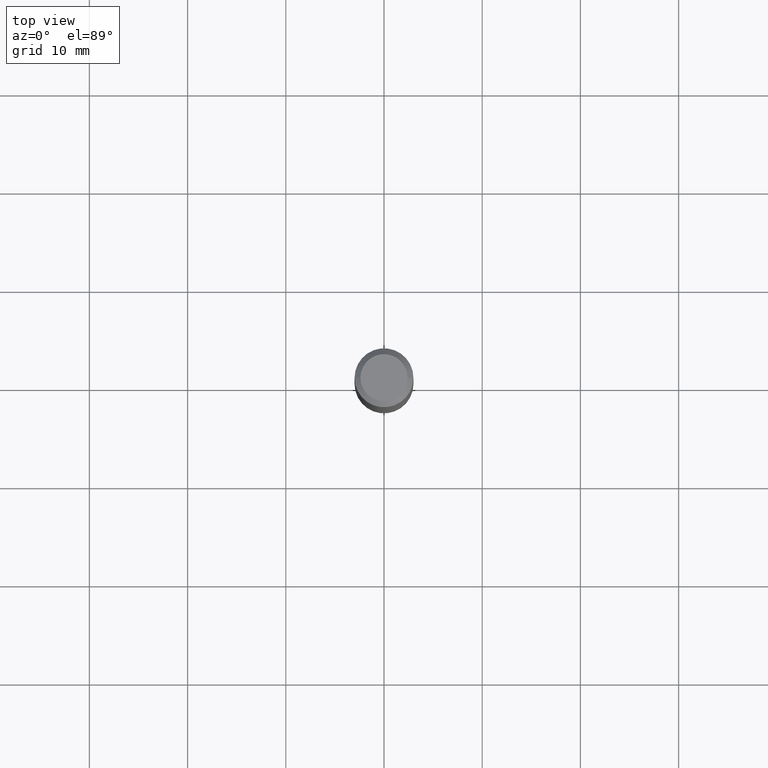
[diagram: clean part render]
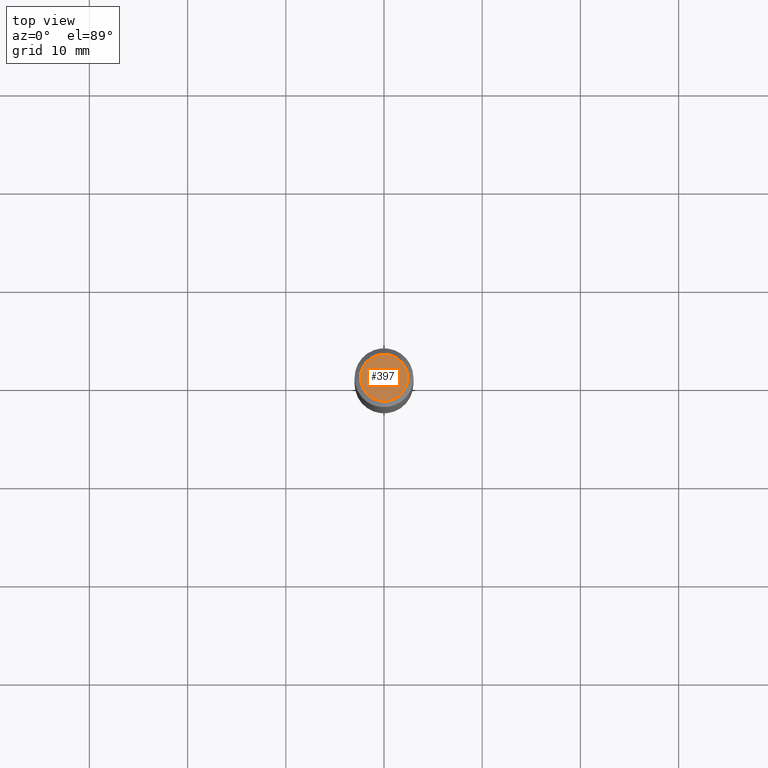
[diagram: same view with one face highlighted and labeled with its STEP entity id]
A machine part, top view. The second image highlights one B-rep face of the part: STEP entity #397.
In plain terms, the highlighted planar face has unit normal (0, -0, -1).
Its self-contained STEP definition (entity closure, byte-faithful):
#11 = ORIENTED_EDGE ( 'NONE', *, *, #250, .T. ) ;
#45 = VERTEX_POINT ( 'NONE', #288 ) ;
#48 = AXIS2_PLACEMENT_3D ( 'NONE', #194, #452, #422 ) ;
#57 = DIRECTION ( 'NONE',  ( 1.000000000000000000, -6.982962677686267499E-15, 4.875432709231658792E-29 ) ) ;
#100 = EDGE_LOOP ( 'NONE', ( #463, #11 ) ) ;
#122 = CIRCLE ( 'NONE', #176, 0.09447999999999998066 ) ;
#123 = FACE_OUTER_BOUND ( 'NONE', #100, .T. ) ;
#145 = CARTESIAN_POINT ( 'NONE',  ( 0.09447999999999998066, -7.704367267948738690E-16, -1.928573779296752193E-17 ) ) ;
#176 = AXIS2_PLACEMENT_3D ( 'NONE', #406, #295, #338 ) ;
#194 = CARTESIAN_POINT ( 'NONE',  ( 2.358133508849003952E-46, -3.366789680499277518E-32, -9.642868896486260050E-18 ) ) ;
#226 = AXIS2_PLACEMENT_3D ( 'NONE', #478, #284, #57 ) ;
#250 = EDGE_CURVE ( 'NONE', #330, #45, #328, .T. ) ;
#284 = DIRECTION ( 'NONE',  ( -2.445468806185136597E-29, 3.491481338843145583E-15, 1.000000000000000000 ) ) ;
#288 = CARTESIAN_POINT ( 'NONE',  ( -0.09447999999999998066, 7.009847083995354710E-16, -1.928573779297727792E-17 ) ) ;
#295 = DIRECTION ( 'NONE',  ( -2.445468806185136597E-29, 3.491481338843145583E-15, 1.000000000000000000 ) ) ;
#328 = CIRCLE ( 'NONE', #226, 0.09447999999999998066 ) ;
#330 = VERTEX_POINT ( 'NONE', #145 ) ;
#331 = EDGE_CURVE ( 'NONE', #45, #330, #122, .T. ) ;
#338 = DIRECTION ( 'NONE',  ( 1.000000000000000000, -6.982962677686267499E-15, 4.875432709231658792E-29 ) ) ;
#397 = ADVANCED_FACE ( 'NONE', ( #123 ), #416, .F. ) ;
#406 = CARTESIAN_POINT ( 'NONE',  ( 4.716267017698007905E-46, -6.733579360998555036E-32, -1.928573779297252010E-17 ) ) ;
#416 = PLANE ( 'NONE',  #48 ) ;
#422 = DIRECTION ( 'NONE',  ( -1.000000000000000000, 6.982962677686265922E-15, -4.876176775795935793E-29 ) ) ;
#452 = DIRECTION ( 'NONE',  ( 2.438088387897960049E-29, -3.491481338843145188E-15, -1.000000000000000000 ) ) ;
#463 = ORIENTED_EDGE ( 'NONE', *, *, #331, .T. ) ;
#478 = CARTESIAN_POINT ( 'NONE',  ( 4.716267017698007905E-46, -6.733579360998555036E-32, -1.928573779297252010E-17 ) ) ;